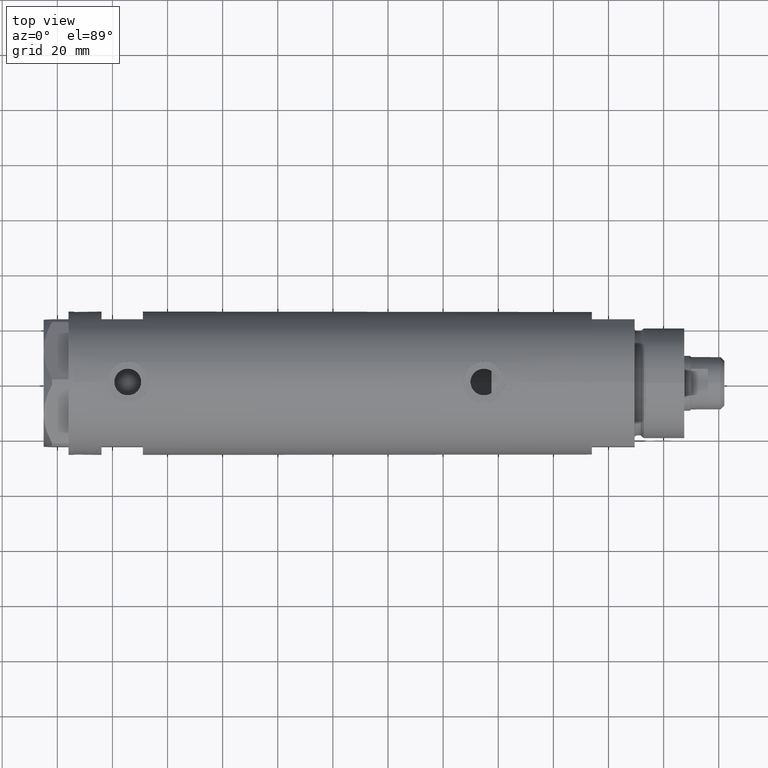
[diagram: clean part render]
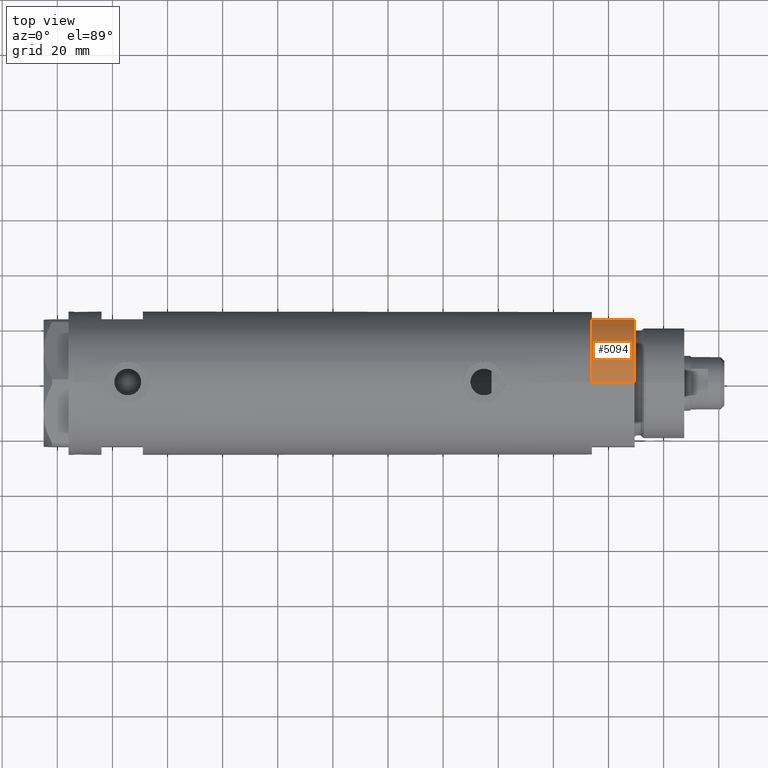
[diagram: same view with one face highlighted and labeled with its STEP entity id]
A machine part, top view. The second image highlights one B-rep face of the part: STEP entity #5094.
In plain terms, the highlighted cylindrical surface (partial cylindrical patch) has radius 26 mm, axis along (-1, -0, 0).
Its self-contained STEP definition (entity closure, byte-faithful):
#20 = CYLINDRICAL_SURFACE ( 'NONE', #706, 26.00000000000000355 ) ;
#31 = VERTEX_POINT ( 'NONE', #379 ) ;
#42 = CARTESIAN_POINT ( 'NONE',  ( -26.00000000000000355, 0.000000000000000000, 15.50000000000000000 ) ) ;
#306 = EDGE_CURVE ( 'NONE', #3051, #834, #459, .T. ) ;
#379 = CARTESIAN_POINT ( 'NONE',  ( -12.12435565298215145, 23.00000000000000355, 0.000000000000000000 ) ) ;
#459 = LINE ( 'NONE', #4375, #4781 ) ;
#608 = ORIENTED_EDGE ( 'NONE', *, *, #3417, .F. ) ;
#706 = AXIS2_PLACEMENT_3D ( 'NONE', #3952, #3163, #4773 ) ;
#773 = DIRECTION ( 'NONE',  ( 1.000000000000000000, 0.000000000000000000, 0.000000000000000000 ) ) ;
#806 = DIRECTION ( 'NONE',  ( -0.000000000000000000, -0.000000000000000000, 1.000000000000000000 ) ) ;
#834 = VERTEX_POINT ( 'NONE', #1714 ) ;
#1430 = EDGE_CURVE ( 'NONE', #31, #4942, #4348, .T. ) ;
#1642 = DIRECTION ( 'NONE',  ( 0.000000000000000000, 0.000000000000000000, 1.000000000000000000 ) ) ;
#1714 = CARTESIAN_POINT ( 'NONE',  ( -26.00000000000000355, 0.000000000000000000, 0.000000000000000000 ) ) ;
#1772 = VECTOR ( 'NONE', #806, 1000.000000000000000 ) ;
#1964 = DIRECTION ( 'NONE',  ( 1.000000000000000000, 0.000000000000000000, 0.000000000000000000 ) ) ;
#2057 = DIRECTION ( 'NONE',  ( -0.000000000000000000, -0.000000000000000000, -1.000000000000000000 ) ) ;
#2346 = FACE_OUTER_BOUND ( 'NONE', #3097, .T. ) ;
#2451 = EDGE_CURVE ( 'NONE', #31, #834, #4463, .T. ) ;
#2878 = AXIS2_PLACEMENT_3D ( 'NONE', #4763, #1642, #773 ) ;
#3051 = VERTEX_POINT ( 'NONE', #42 ) ;
#3097 = EDGE_LOOP ( 'NONE', ( #4263, #608, #3150, #4637 ) ) ;
#3144 = CARTESIAN_POINT ( 'NONE',  ( 0.000000000000000000, 0.000000000000000000, 0.000000000000000000 ) ) ;
#3150 = ORIENTED_EDGE ( 'NONE', *, *, #1430, .F. ) ;
#3163 = DIRECTION ( 'NONE',  ( -0.000000000000000000, -0.000000000000000000, -1.000000000000000000 ) ) ;
#3417 = EDGE_CURVE ( 'NONE', #4942, #3051, #4979, .T. ) ;
#3952 = CARTESIAN_POINT ( 'NONE',  ( 0.000000000000000000, 0.000000000000000000, 15.50000000000000000 ) ) ;
#3955 = AXIS2_PLACEMENT_3D ( 'NONE', #3144, #3956, #1964 ) ;
#3956 = DIRECTION ( 'NONE',  ( 0.000000000000000000, 0.000000000000000000, 1.000000000000000000 ) ) ;
#4263 = ORIENTED_EDGE ( 'NONE', *, *, #306, .F. ) ;
#4348 = LINE ( 'NONE', #4794, #1772 ) ;
#4375 = CARTESIAN_POINT ( 'NONE',  ( -26.00000000000000355, 0.000000000000000000, 15.50000000000000000 ) ) ;
#4463 = CIRCLE ( 'NONE', #3955, 26.00000000000000355 ) ;
#4637 = ORIENTED_EDGE ( 'NONE', *, *, #2451, .T. ) ;
#4654 = CARTESIAN_POINT ( 'NONE',  ( -12.12435565298214613, 23.00000000000000355, 15.50000000000000000 ) ) ;
#4763 = CARTESIAN_POINT ( 'NONE',  ( 0.000000000000000000, 0.000000000000000000, 15.50000000000000000 ) ) ;
#4773 = DIRECTION ( 'NONE',  ( -1.000000000000000000, 0.000000000000000000, 0.000000000000000000 ) ) ;
#4781 = VECTOR ( 'NONE', #2057, 1000.000000000000000 ) ;
#4794 = CARTESIAN_POINT ( 'NONE',  ( -12.12435565298215145, 23.00000000000000355, 0.000000000000000000 ) ) ;
#4942 = VERTEX_POINT ( 'NONE', #4654 ) ;
#4979 = CIRCLE ( 'NONE', #2878, 26.00000000000000355 ) ;
#5094 = ADVANCED_FACE ( 'NONE', ( #2346 ), #20, .T. ) ;